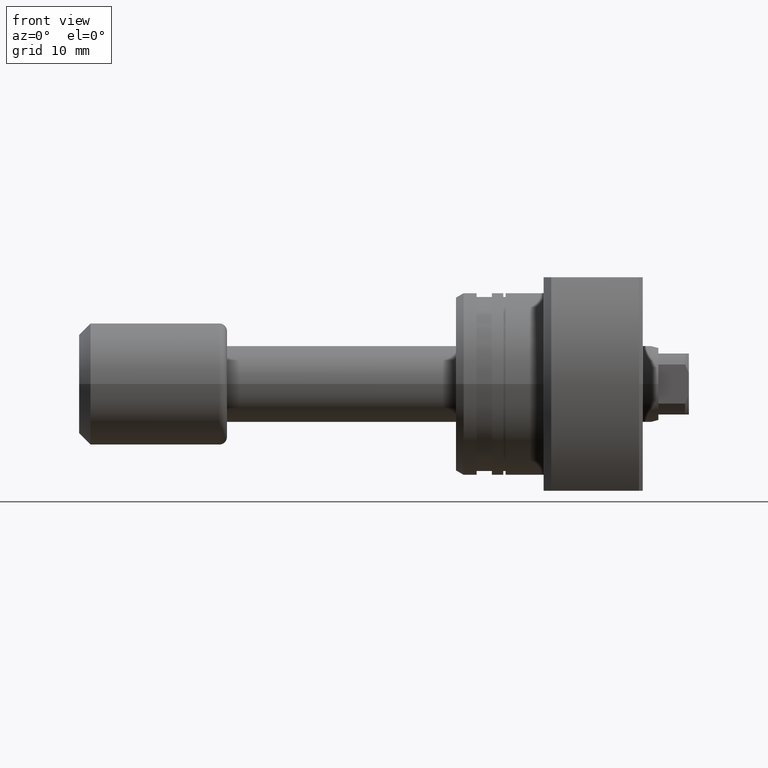
[diagram: clean part render]
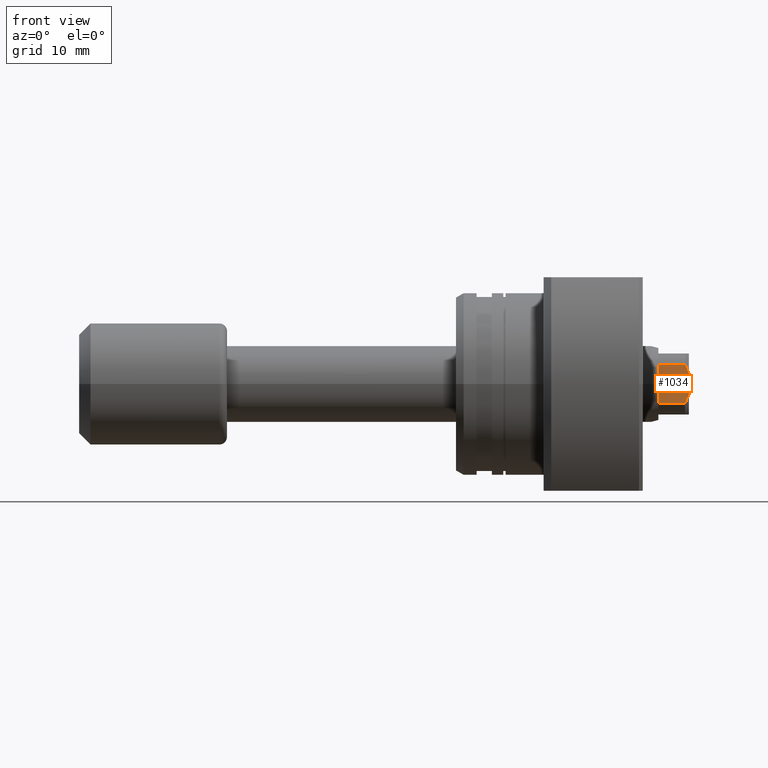
[diagram: same view with one face highlighted and labeled with its STEP entity id]
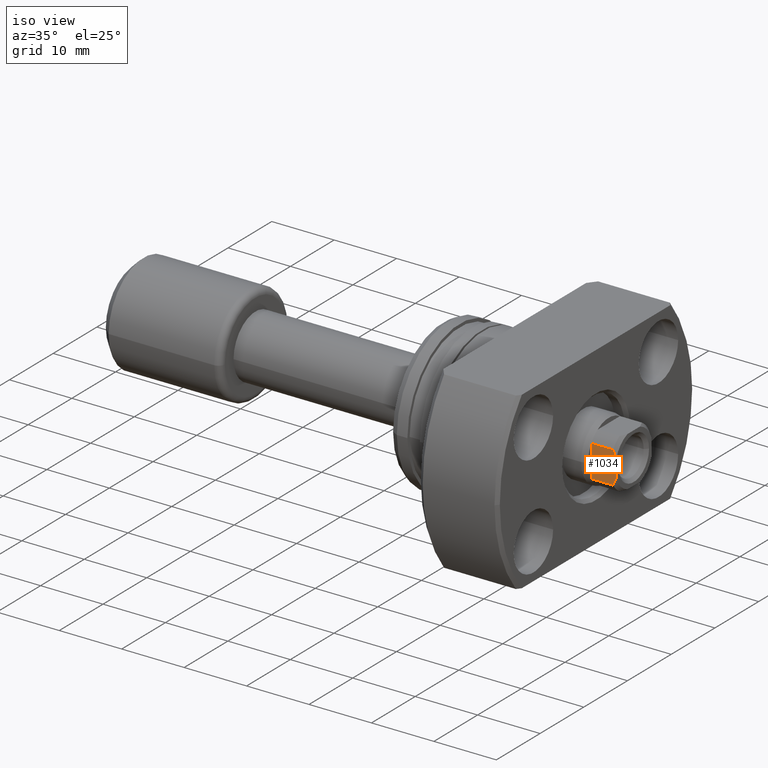
[diagram: same view with one face highlighted and labeled with its STEP entity id]
A machine part, front view. The second image highlights one B-rep face of the part: STEP entity #1034.
A second angle (iso view) of the same face is appended — the face is thin or edge-on in the first view.
In plain terms, the highlighted planar face has unit normal (0, 1, 0).
Its self-contained STEP definition (entity closure, byte-faithful):
#16 = CARTESIAN_POINT ( 'NONE',  ( 80.00000000000007105, -4.000000000001323386, -1.436140661630859183 ) ) ;
#50 = VECTOR ( 'NONE', #1207, 1000.000000000000000 ) ;
#128 = VERTEX_POINT ( 'NONE', #979 ) ;
#132 = EDGE_CURVE ( 'NONE', #3002, #1495, #2969, .T. ) ;
#162 = DIRECTION ( 'NONE',  ( 1.000000000000000000, -1.657264799492230625E-14, -0.000000000000000000 ) ) ;
#180 = CARTESIAN_POINT ( 'NONE',  ( 76.00000000000000000, -4.000000000001859846, -2.561737691490286295 ) ) ;
#277 = CARTESIAN_POINT ( 'NONE',  ( 79.50000000000007105, -4.000000000000715872, 2.561737691492164792 ) ) ;
#281 = VERTEX_POINT ( 'NONE', #1002 ) ;
#391 = LINE ( 'NONE', #180, #855 ) ;
#411 = DIRECTION ( 'NONE',  ( 1.657264799492230625E-14, 1.000000000000000000, 5.078750300251266878E-16 ) ) ;
#428 = CARTESIAN_POINT ( 'NONE',  ( 80.00000000000000000, -4.000000000001325162, 1.436140661630811222 ) ) ;
#447 = ORIENTED_EDGE ( 'NONE', *, *, #1837, .T. ) ;
#472 = VERTEX_POINT ( 'NONE', #1058 ) ;
#593 = B_SPLINE_CURVE_WITH_KNOTS ( 'NONE', 3,
 ( #428, #2601, #1433, #2379 ),
 .UNSPECIFIED., .F., .F.,
 ( 4, 4 ),
 ( 2.910835495304921789E-17, 0.001231652821875021562 ),
 .UNSPECIFIED. ) ;
#633 = EDGE_CURVE ( 'NONE', #281, #128, #1442, .T. ) ;
#665 = ORIENTED_EDGE ( 'NONE', *, *, #633, .T. ) ;
#743 = CARTESIAN_POINT ( 'NONE',  ( 79.50000000000008527, -4.000000000001917577, -2.561737691490286295 ) ) ;
#855 = VECTOR ( 'NONE', #1181, 1000.000000000000000 ) ;
#885 = EDGE_CURVE ( 'NONE', #472, #281, #2882, .T. ) ;
#972 = ORIENTED_EDGE ( 'NONE', *, *, #132, .F. ) ;
#979 = CARTESIAN_POINT ( 'NONE',  ( 80.00000000000000000, -4.000000000001325162, 1.436140661630811222 ) ) ;
#1002 = CARTESIAN_POINT ( 'NONE',  ( 80.00000000000007105, -4.000000000001323386, -1.436140661630859183 ) ) ;
#1034 = ADVANCED_FACE ( 'NONE', ( #2633 ), #1415, .F. ) ;
#1058 = CARTESIAN_POINT ( 'NONE',  ( 79.50000000000008527, -4.000000000001917577, -2.561737691490286295 ) ) ;
#1121 = LINE ( 'NONE', #2871, #1703 ) ;
#1166 = DIRECTION ( 'NONE',  ( -1.000000000000000000, 1.657264799492230625E-14, 0.000000000000000000 ) ) ;
#1181 = DIRECTION ( 'NONE',  ( 1.000000000000000000, -1.657264799492230625E-14, -0.000000000000000000 ) ) ;
#1194 = VECTOR ( 'NONE', #2455, 1000.000000000000000 ) ;
#1203 = CARTESIAN_POINT ( 'NONE',  ( 76.00000000000000000, -4.000000000001859846, -2.561737691490286295 ) ) ;
#1207 = DIRECTION ( 'NONE',  ( 0.000000000000000000, -5.078750300251266878E-16, 1.000000000000000000 ) ) ;
#1332 = EDGE_CURVE ( 'NONE', #128, #2028, #593, .T. ) ;
#1415 = PLANE ( 'NONE',  #2144 ) ;
#1417 = CARTESIAN_POINT ( 'NONE',  ( 76.00000000000000000, -4.000000000001257661, -2.561737691489901270 ) ) ;
#1433 = CARTESIAN_POINT ( 'NONE',  ( 79.69545340717230886, -4.000000000001321609, 2.199326002284701875 ) ) ;
#1442 = LINE ( 'NONE', #1461, #1194 ) ;
#1461 = CARTESIAN_POINT ( 'NONE',  ( 80.00000000000000000, -4.000000000001323386, -2.561737691489901270 ) ) ;
#1489 = CARTESIAN_POINT ( 'NONE',  ( 76.00000000000000000, -4.000000000000657252, 2.561737691492164792 ) ) ;
#1495 = VERTEX_POINT ( 'NONE', #1489 ) ;
#1526 = CARTESIAN_POINT ( 'NONE',  ( 79.86800940637697011, -4.000000000001321609, -1.826743085115765552 ) ) ;
#1703 = VECTOR ( 'NONE', #162, 1000.000000000000000 ) ;
#1837 = EDGE_CURVE ( 'NONE', #3002, #472, #391, .T. ) ;
#1878 = CARTESIAN_POINT ( 'NONE',  ( 76.00000000000000000, -4.000000000001257661, -2.561737691489901270 ) ) ;
#2006 = CARTESIAN_POINT ( 'NONE',  ( 79.69545340717326098, -4.000000000000385469, -2.199326002284341275 ) ) ;
#2028 = VERTEX_POINT ( 'NONE', #277 ) ;
#2144 = AXIS2_PLACEMENT_3D ( 'NONE', #1878, #411, #1166 ) ;
#2276 = EDGE_CURVE ( 'NONE', #1495, #2028, #1121, .T. ) ;
#2379 = CARTESIAN_POINT ( 'NONE',  ( 79.50000000000007105, -4.000000000000715872, 2.561737691492164792 ) ) ;
#2424 = ORIENTED_EDGE ( 'NONE', *, *, #885, .T. ) ;
#2455 = DIRECTION ( 'NONE',  ( 0.000000000000000000, -5.078750300251266878E-16, 1.000000000000000000 ) ) ;
#2593 = ORIENTED_EDGE ( 'NONE', *, *, #2276, .F. ) ;
#2601 = CARTESIAN_POINT ( 'NONE',  ( 79.86800940637657220, -4.000000000001323386, 1.826743085116866894 ) ) ;
#2609 = EDGE_LOOP ( 'NONE', ( #447, #2424, #665, #2674, #2593, #972 ) ) ;
#2633 = FACE_OUTER_BOUND ( 'NONE', #2609, .T. ) ;
#2674 = ORIENTED_EDGE ( 'NONE', *, *, #1332, .T. ) ;
#2871 = CARTESIAN_POINT ( 'NONE',  ( 76.00000000000000000, -4.000000000000657252, 2.561737691492164792 ) ) ;
#2882 = B_SPLINE_CURVE_WITH_KNOTS ( 'NONE', 3,
 ( #743, #2006, #1526, #16 ),
 .UNSPECIFIED., .F., .F.,
 ( 4, 4 ),
 ( 8.971493569808716528E-16, 0.001231652821872355726 ),
 .UNSPECIFIED. ) ;
#2969 = LINE ( 'NONE', #1417, #50 ) ;
#3002 = VERTEX_POINT ( 'NONE', #1203 ) ;